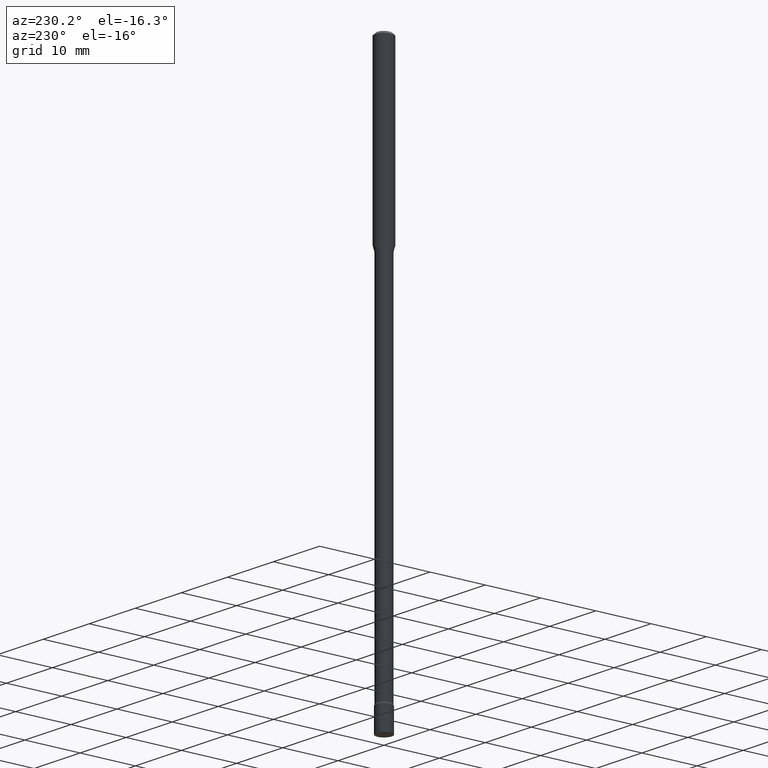
[diagram: clean part render]
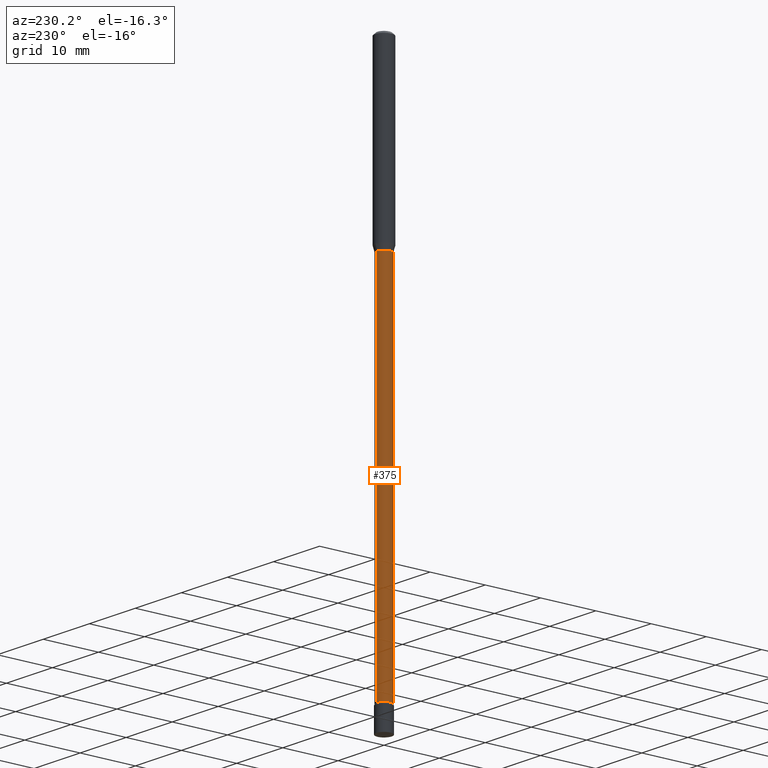
[diagram: same view with one face highlighted and labeled with its STEP entity id]
A machine part, auxiliary view. The second image highlights one B-rep face of the part: STEP entity #375.
In plain terms, the highlighted cylindrical surface (edge-blend (fillet) strip) has radius 1.3132 mm, axis along (-0, 0, 1).
Its self-contained STEP definition (entity closure, byte-faithful):
#29 = CARTESIAN_POINT ( 'NONE',  ( 3.061579603925495244E-29, -4.371369312853743767E-15, -1.251974787463811190 ) ) ;
#30 = VERTEX_POINT ( 'NONE', #417 ) ;
#32 = CARTESIAN_POINT ( 'NONE',  ( 9.355156183166180698E-29, -1.335743241939947111E-14, -3.825613307291703347 ) ) ;
#41 = CARTESIAN_POINT ( 'NONE',  ( 3.673505943879728028E-16, 0.05170000000000015555, -1.805146523216801116E-16 ) ) ;
#52 = DIRECTION ( 'NONE',  ( -2.445400366350421990E-29, 3.491579348581810268E-15, 1.000000000000000000 ) ) ;
#71 = CARTESIAN_POINT ( 'NONE',  ( 3.673505943880662335E-16, 0.05169999999999561058, -1.251974787463811412 ) ) ;
#119 = CIRCLE ( 'NONE', #150, 0.05170000000000031515 ) ;
#127 = CYLINDRICAL_SURFACE ( 'NONE', #160, 0.05170000000000015555 ) ;
#130 = VERTEX_POINT ( 'NONE', #71 ) ;
#143 = ORIENTED_EDGE ( 'NONE', *, *, #416, .T. ) ;
#150 = AXIS2_PLACEMENT_3D ( 'NONE', #32, #389, #339 ) ;
#157 = DIRECTION ( 'NONE',  ( -6.982962677686266711E-15, -1.000000000000000000, 5.284038672464726492E-15 ) ) ;
#160 = AXIS2_PLACEMENT_3D ( 'NONE', #444, #52, #245 ) ;
#171 = LINE ( 'NONE', #176, #449 ) ;
#176 = CARTESIAN_POINT ( 'NONE',  ( -3.610191704363809896E-16, -0.05170000000000015555, 1.805146523216801116E-16 ) ) ;
#204 = CARTESIAN_POINT ( 'NONE',  ( 3.790745495281081238E-16, 0.05169999999998695778, -3.825613307291703347 ) ) ;
#230 = EDGE_CURVE ( 'NONE', #130, #487, #477, .T. ) ;
#235 = DIRECTION ( 'NONE',  ( -2.445400366350422270E-29, 3.491579348581810268E-15, 1.000000000000000000 ) ) ;
#245 = DIRECTION ( 'NONE',  ( -6.982962677686265133E-15, -1.000000000000000000, 3.491579348581809873E-15 ) ) ;
#247 = EDGE_CURVE ( 'NONE', #394, #130, #391, .T. ) ;
#255 = EDGE_CURVE ( 'NONE', #394, #30, #119, .T. ) ;
#258 = CARTESIAN_POINT ( 'NONE',  ( -3.610191704363492873E-16, -0.05170000000000436052, -1.251974787463810745 ) ) ;
#280 = EDGE_LOOP ( 'NONE', ( #407, #300, #143, #433 ) ) ;
#300 = ORIENTED_EDGE ( 'NONE', *, *, #255, .T. ) ;
#315 = AXIS2_PLACEMENT_3D ( 'NONE', #29, #518, #157 ) ;
#339 = DIRECTION ( 'NONE',  ( -6.982962677686266711E-15, -1.000000000000000000, 0.000000000000000000 ) ) ;
#355 = FACE_OUTER_BOUND ( 'NONE', #280, .T. ) ;
#372 = DIRECTION ( 'NONE',  ( -2.445400366350422270E-29, 3.491579348581810268E-15, 1.000000000000000000 ) ) ;
#375 = ADVANCED_FACE ( 'NONE', ( #355 ), #127, .T. ) ;
#389 = DIRECTION ( 'NONE',  ( -2.445400366350421990E-29, 3.491579348581810268E-15, 1.000000000000000000 ) ) ;
#391 = LINE ( 'NONE', #41, #413 ) ;
#394 = VERTEX_POINT ( 'NONE', #204 ) ;
#407 = ORIENTED_EDGE ( 'NONE', *, *, #247, .F. ) ;
#413 = VECTOR ( 'NONE', #235, 39.37007874015748143 ) ;
#416 = EDGE_CURVE ( 'NONE', #30, #487, #171, .T. ) ;
#417 = CARTESIAN_POINT ( 'NONE',  ( -3.610191704362886436E-16, -0.05170000000001367252, -3.825613307291703347 ) ) ;
#433 = ORIENTED_EDGE ( 'NONE', *, *, #230, .F. ) ;
#444 = CARTESIAN_POINT ( 'NONE',  ( 0.000000000000000000, 0.000000000000000000, 0.000000000000000000 ) ) ;
#449 = VECTOR ( 'NONE', #372, 39.37007874015748143 ) ;
#477 = CIRCLE ( 'NONE', #315, 0.05169999999999998902 ) ;
#487 = VERTEX_POINT ( 'NONE', #258 ) ;
#518 = DIRECTION ( 'NONE',  ( -2.445400366350421990E-29, 3.491579348581810268E-15, 1.000000000000000000 ) ) ;